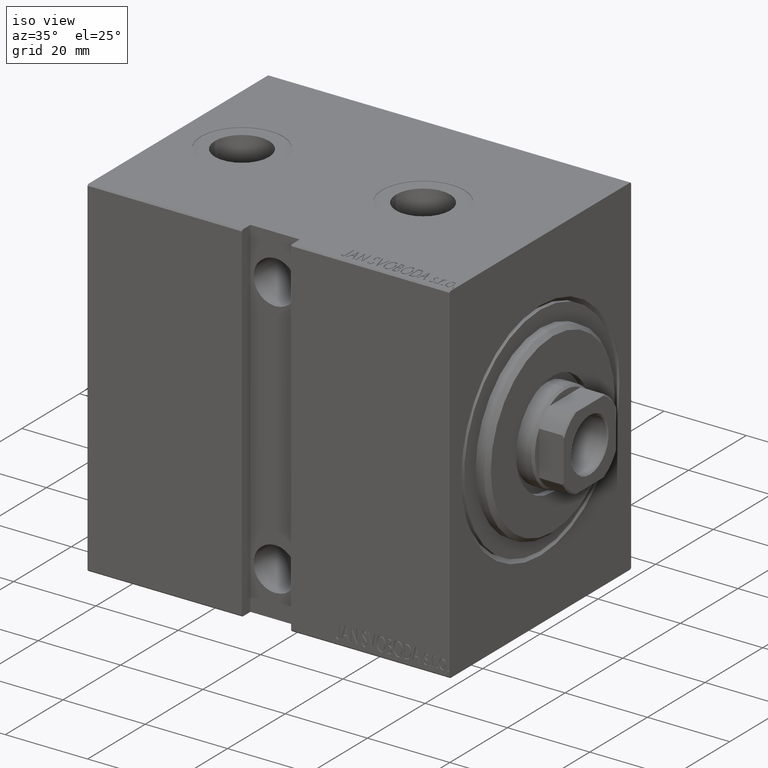
[diagram: clean part render]
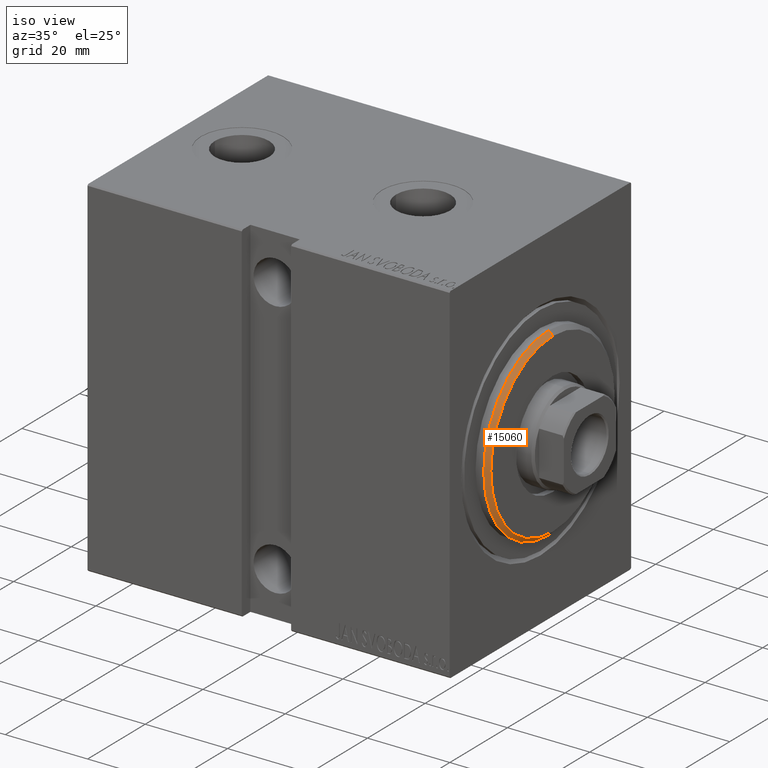
[diagram: same view with one face highlighted and labeled with its STEP entity id]
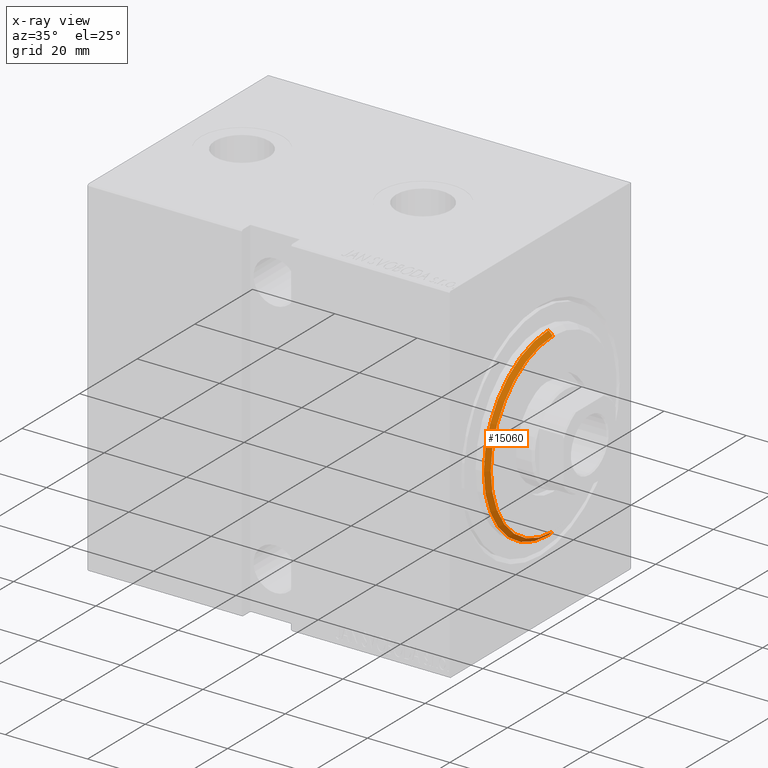
[diagram: x-ray of the same camera — body ghosted, the highlighted face saturated]
A machine part, iso view. The second image highlights one B-rep face of the part: STEP entity #15060.
The next image is the same camera in x-ray: the body ghosted, the highlighted face saturated — about 0% of this face is hidden behind the body in this view.
In plain terms, the highlighted conical surface has half-angle 45 deg.
Its self-contained STEP definition (entity closure, byte-faithful):
#1114 = LINE ( 'NONE', #28013, #30832 ) ;
#1280 = CARTESIAN_POINT ( 'NONE',  ( 3.000000000000000000, 0.000000000000000000, 21.50000000000001066 ) ) ;
#2108 = CARTESIAN_POINT ( 'NONE',  ( 3.000000000000000000, 2.694222958124177993E-15, -21.50000000000001066 ) ) ;
#2628 = CARTESIAN_POINT ( 'NONE',  ( 3.000000000000000000, 0.000000000000000000, 21.50000000000001066 ) ) ;
#2636 = CARTESIAN_POINT ( 'NONE',  ( 3.000000000000000000, 0.000000000000000000, 0.000000000000000000 ) ) ;
#3336 = ORIENTED_EDGE ( 'NONE', *, *, #5861, .F. ) ;
#4651 = DIRECTION ( 'NONE',  ( -1.000000000000000000, 0.000000000000000000, 0.000000000000000000 ) ) ;
#4864 = DIRECTION ( 'NONE',  ( 0.000000000000000000, 0.000000000000000000, -1.000000000000000000 ) ) ;
#5673 = FACE_OUTER_BOUND ( 'NONE', #31529, .T. ) ;
#5861 = EDGE_CURVE ( 'NONE', #37445, #26108, #12692, .T. ) ;
#9299 = ORIENTED_EDGE ( 'NONE', *, *, #31513, .T. ) ;
#11473 = DIRECTION ( 'NONE',  ( 1.000000000000000000, -0.000000000000000000, 0.000000000000000000 ) ) ;
#12692 = CIRCLE ( 'NONE', #37639, 21.50000000000001066 ) ;
#14335 = DIRECTION ( 'NONE',  ( -0.7071067811865487940, 8.659560562354919300E-17, -0.7071067811865463515 ) ) ;
#14654 = AXIS2_PLACEMENT_3D ( 'NONE', #34599, #4651, #4864 ) ;
#15060 = ADVANCED_FACE ( 'NONE', ( #5673 ), #31295, .T. ) ;
#16241 = VERTEX_POINT ( 'NONE', #34088 ) ;
#20888 = CIRCLE ( 'NONE', #14654, 22.50000000000000355 ) ;
#21665 = CARTESIAN_POINT ( 'NONE',  ( 3.000000000000000000, 0.000000000000000000, 0.000000000000000000 ) ) ;
#22240 = ORIENTED_EDGE ( 'NONE', *, *, #22414, .F. ) ;
#22414 = EDGE_CURVE ( 'NONE', #37395, #16241, #20888, .T. ) ;
#23205 = CARTESIAN_POINT ( 'NONE',  ( 2.000000000000006217, 2.755455298081545172E-15, -22.50000000000000355 ) ) ;
#24701 = DIRECTION ( 'NONE',  ( 0.000000000000000000, 0.000000000000000000, -1.000000000000000000 ) ) ;
#25828 = DIRECTION ( 'NONE',  ( 0.000000000000000000, 0.000000000000000000, 1.000000000000000000 ) ) ;
#26108 = VERTEX_POINT ( 'NONE', #2108 ) ;
#28013 = CARTESIAN_POINT ( 'NONE',  ( 3.000000000000000000, 2.632990618166810813E-15, -21.50000000000001066 ) ) ;
#28501 = AXIS2_PLACEMENT_3D ( 'NONE', #2636, #29099, #25828 ) ;
#29099 = DIRECTION ( 'NONE',  ( -1.000000000000000000, 0.000000000000000000, 0.000000000000000000 ) ) ;
#30832 = VECTOR ( 'NONE', #14335, 1000.000000000000000 ) ;
#31295 = CONICAL_SURFACE ( 'NONE', #28501, 21.50000000000001066, 0.7853981633974466137 ) ;
#31513 = EDGE_CURVE ( 'NONE', #37445, #16241, #38857, .T. ) ;
#31529 = EDGE_LOOP ( 'NONE', ( #39149, #3336, #9299, #22240 ) ) ;
#32780 = VECTOR ( 'NONE', #38655, 1000.000000000000000 ) ;
#34088 = CARTESIAN_POINT ( 'NONE',  ( 2.000000000000006217, 0.000000000000000000, 22.50000000000000355 ) ) ;
#34599 = CARTESIAN_POINT ( 'NONE',  ( 2.000000000000006217, 0.000000000000000000, 0.000000000000000000 ) ) ;
#36516 = EDGE_CURVE ( 'NONE', #26108, #37395, #1114, .T. ) ;
#37395 = VERTEX_POINT ( 'NONE', #23205 ) ;
#37445 = VERTEX_POINT ( 'NONE', #1280 ) ;
#37639 = AXIS2_PLACEMENT_3D ( 'NONE', #21665, #11473, #24701 ) ;
#38655 = DIRECTION ( 'NONE',  ( -0.7071067811865487940, 0.000000000000000000, 0.7071067811865463515 ) ) ;
#38857 = LINE ( 'NONE', #2628, #32780 ) ;
#39149 = ORIENTED_EDGE ( 'NONE', *, *, #36516, .F. ) ;